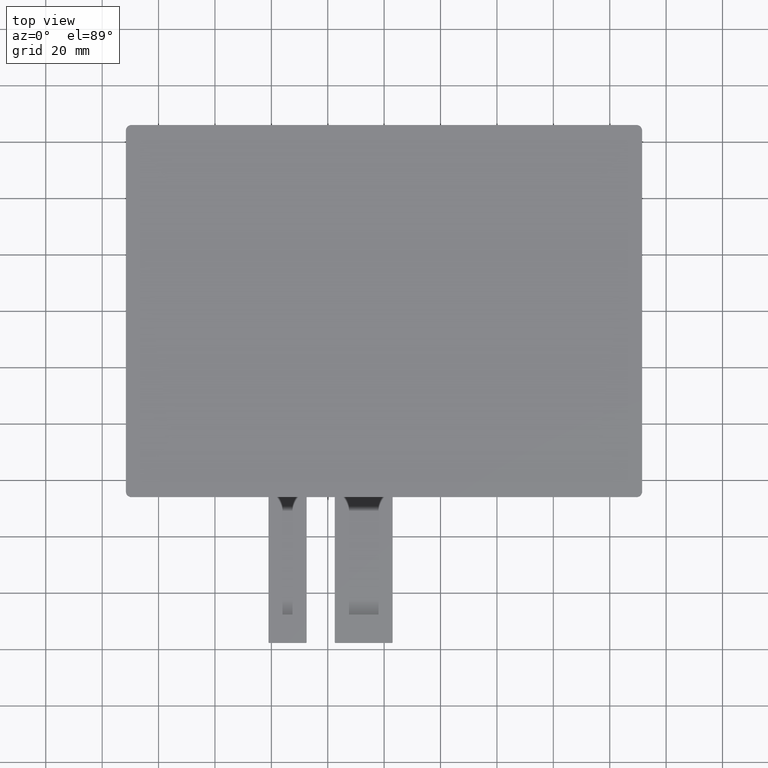
[diagram: clean part render]
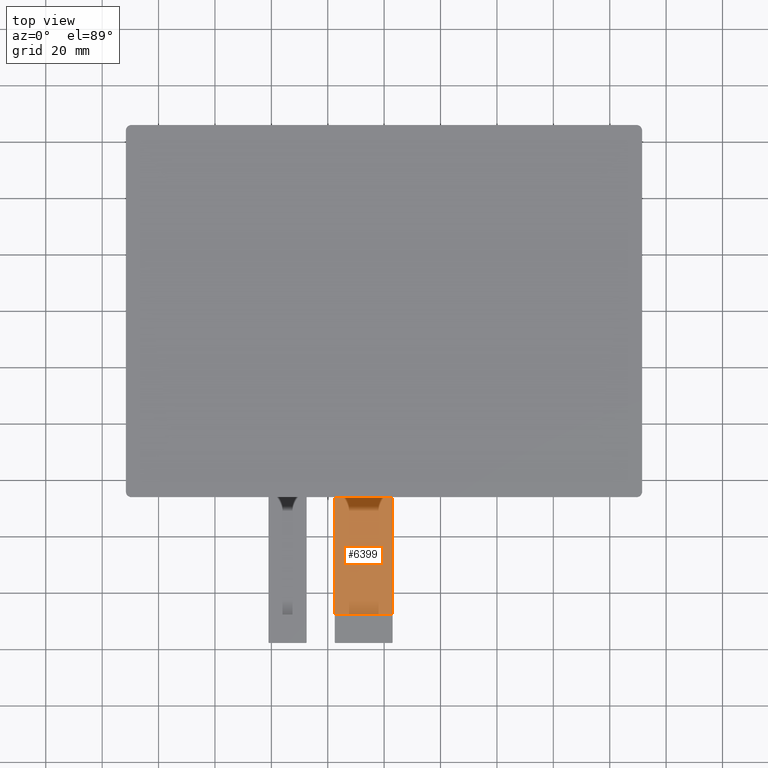
[diagram: same view with one face highlighted and labeled with its STEP entity id]
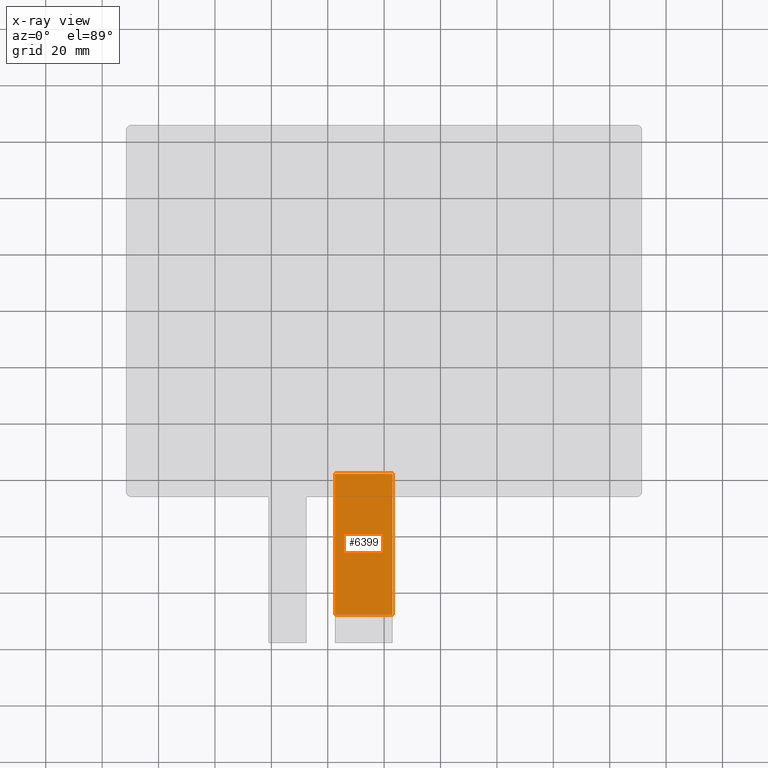
[diagram: x-ray of the same camera — body ghosted, the highlighted face saturated]
A machine part, top view. The second image highlights one B-rep face of the part: STEP entity #6399.
The next image is the same camera in x-ray: the body ghosted, the highlighted face saturated — about 0% of this face is hidden behind the body in this view.
In plain terms, the highlighted planar face has unit normal (0, 0, 1).
Its self-contained STEP definition (entity closure, byte-faithful):
#345=FACE_OUTER_BOUND('',#655,.T.);
#655=EDGE_LOOP('',(#5702,#5703,#5704,#5705));
#1521=LINE('',#10033,#2409);
#1524=LINE('',#10039,#2412);
#1534=LINE('',#10058,#2422);
#1535=LINE('',#10060,#2423);
#2409=VECTOR('',#8215,10.);
#2412=VECTOR('',#8220,10.);
#2422=VECTOR('',#8238,10.);
#2423=VECTOR('',#8241,10.);
#3047=VERTEX_POINT('',#10030);
#3048=VERTEX_POINT('',#10032);
#3050=VERTEX_POINT('',#10038);
#3055=VERTEX_POINT('',#10056);
#3933=EDGE_CURVE('',#3048,#3047,#1521,.T.);
#3936=EDGE_CURVE('',#3047,#3050,#1524,.T.);
#3946=EDGE_CURVE('',#3050,#3055,#1534,.T.);
#3947=EDGE_CURVE('',#3048,#3055,#1535,.T.);
#5702=ORIENTED_EDGE('',*,*,#3936,.T.);
#5703=ORIENTED_EDGE('',*,*,#3946,.T.);
#5704=ORIENTED_EDGE('',*,*,#3947,.F.);
#5705=ORIENTED_EDGE('',*,*,#3933,.T.);
#6065=PLANE('',#6745);
#6399=ADVANCED_FACE('',(#345),#6065,.T.);
#6745=AXIS2_PLACEMENT_3D('',#10059,#8239,#8240);
#8215=DIRECTION('',(3.33066907387547E-16,-1.,0.));
#8220=DIRECTION('',(1.,0.,0.));
#8238=DIRECTION('',(-2.22044604925031E-16,1.,0.));
#8239=DIRECTION('center_axis',(0.,0.,1.));
#8240=DIRECTION('ref_axis',(1.,0.,0.));
#8241=DIRECTION('',(1.,1.57851614875615E-16,0.));
#10030=CARTESIAN_POINT('',(-17.5,-107.72,-1.25));
#10032=CARTESIAN_POINT('',(-17.5,-57.72,-1.25));
#10033=CARTESIAN_POINT('',(-17.5,-57.72,-1.25));
#10038=CARTESIAN_POINT('',(3.00000000000003,-107.72,-1.25));
#10039=CARTESIAN_POINT('',(-2.12499999999998,-107.72,-1.25));
#10056=CARTESIAN_POINT('',(3.00000000000002,-57.72,-1.25));
#10058=CARTESIAN_POINT('',(3.00000000000003,-117.72,-1.25));
#10059=CARTESIAN_POINT('Origin',(-7.24999999999998,-87.72,-1.25));
#10060=CARTESIAN_POINT('',(38.525,-57.72,-1.25));